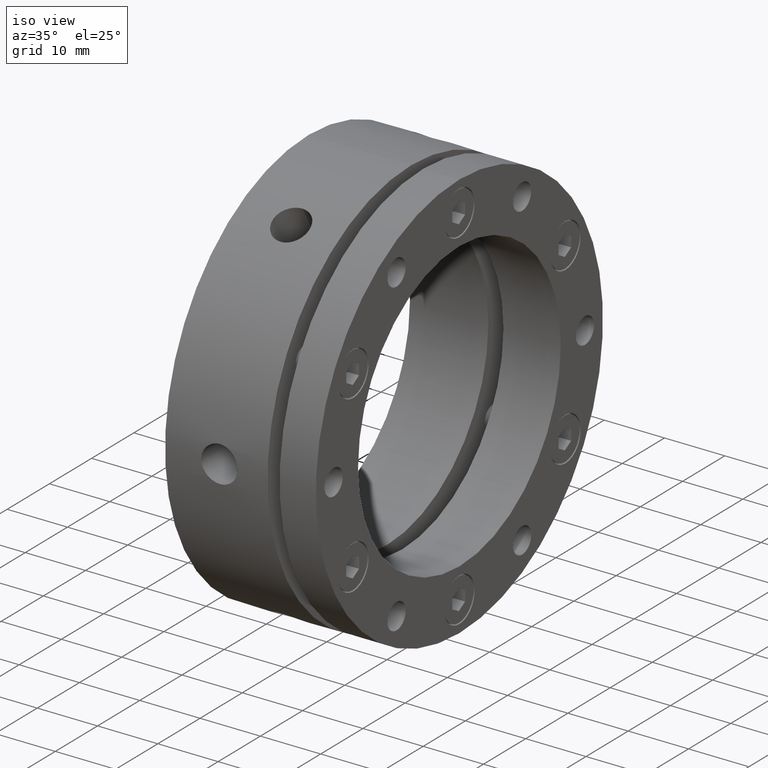
[diagram: clean part render]
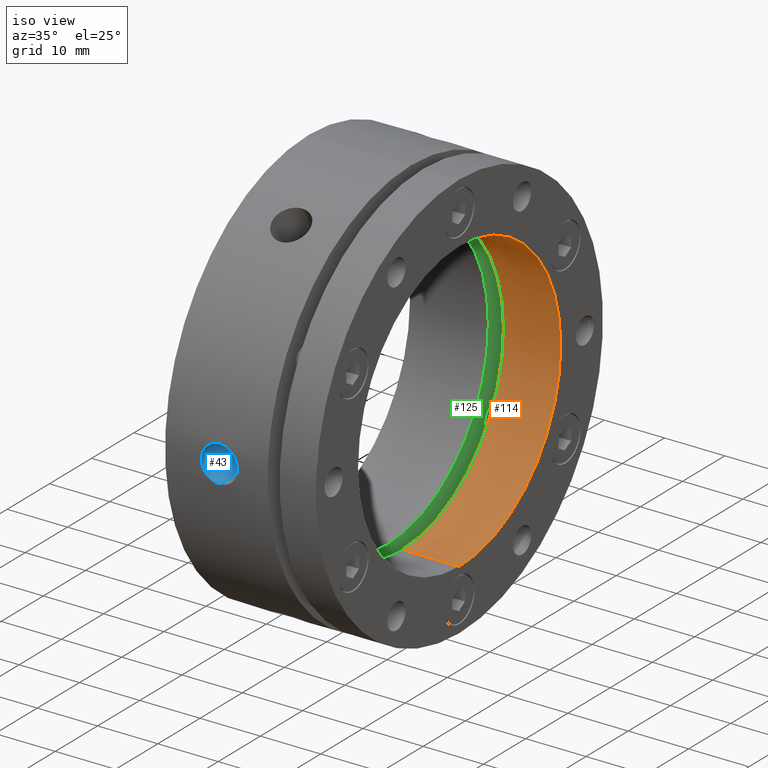
[diagram: same view with three faces highlighted in distinct colors, each labeled with its STEP entity id]
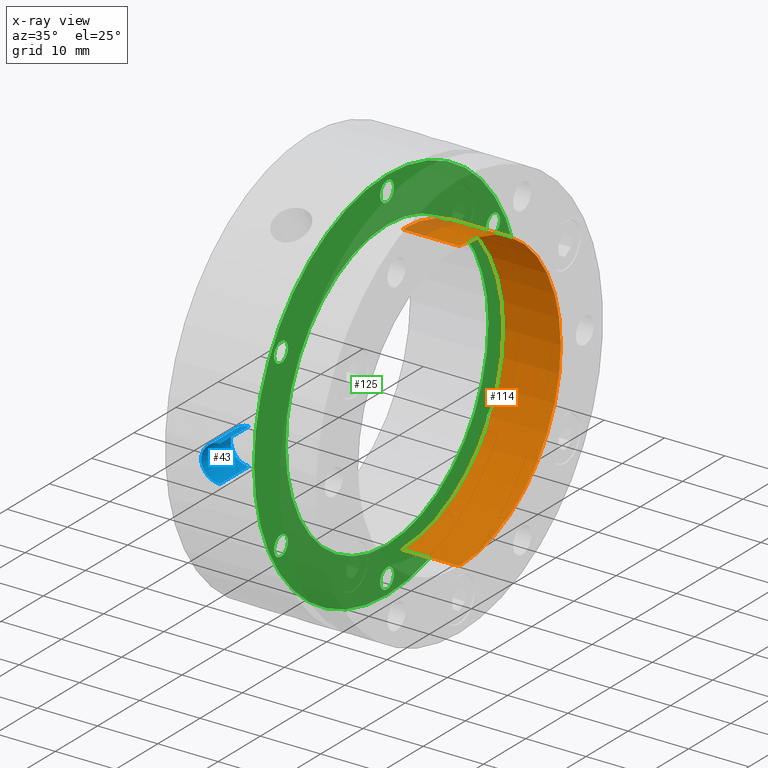
[diagram: x-ray of the same camera — body ghosted, the three highlighted faces saturated]
A machine part, iso view with three faces highlighted in distinct colors.
The next image is the same camera in x-ray (body ghosted, the three faces saturated) — at least one of them is partly hidden behind the body in this view.
Their STEP definitions:

[orange] entity #114 — the highlighted cylindrical surface (partial cylindrical patch) has radius 24 mm, axis along (1, 0, 0).
#114 = ADVANCED_FACE ( 'NONE', ( #1914 ), #1918, .F. ) ;
#412 = DIRECTION ( 'NONE',  ( 0.0000000000000000000, 0.0000000000000000000, -1.000000000000000000 ) ) ;
#415 = DIRECTION ( 'NONE',  ( 1.000000000000000000, 0.0000000000000000000, 0.0000000000000000000 ) ) ;
#416 = CARTESIAN_POINT ( 'NONE',  ( 12.49999999999999300, 0.0000000000000000000, 0.0000000000000000000 ) ) ;
#790 = ORIENTED_EDGE ( 'NONE', *, *, #2917, .F. ) ;
#791 = ORIENTED_EDGE ( 'NONE', *, *, #1445, .T. ) ;
#792 = ORIENTED_EDGE ( 'NONE', *, *, #2919, .T. ) ;
#793 = ORIENTED_EDGE ( 'NONE', *, *, #1437, .F. ) ;
#1203 = EDGE_LOOP ( 'NONE', ( #790, #791, #792, #793 ) ) ;
#1437 = EDGE_CURVE ( 'NONE', #1668, #1667, #2379, .T. ) ;
#1445 = EDGE_CURVE ( 'NONE', #1663, #1662, #2387, .T. ) ;
#1662 = VERTEX_POINT ( 'NONE', #3646 ) ;
#1663 = VERTEX_POINT ( 'NONE', #3647 ) ;
#1667 = VERTEX_POINT ( 'NONE', #3651 ) ;
#1668 = VERTEX_POINT ( 'NONE', #3652 ) ;
#1914 = FACE_OUTER_BOUND ( 'NONE', #1203, .T. ) ;
#1918 = CYLINDRICAL_SURFACE ( 'NONE', #2001, 24.00000000000000400 ) ;
#2001 = AXIS2_PLACEMENT_3D ( 'NONE', #416, #415, #412 ) ;
#2091 = AXIS2_PLACEMENT_3D ( 'NONE', #4341, #4342, #4343 ) ;
#2099 = AXIS2_PLACEMENT_3D ( 'NONE', #4366, #4367, #4368 ) ;
#2379 = CIRCLE ( 'NONE', #2091, 24.00000000000000400 ) ;
#2387 = CIRCLE ( 'NONE', #2099, 24.00000000000000400 ) ;
#2673 = LINE ( 'NONE', #3789, #2681 ) ;
#2681 = VECTOR ( 'NONE', #3783, 1000.000000000000000 ) ;
#2682 = LINE ( 'NONE', #3788, #2684 ) ;
#2684 = VECTOR ( 'NONE', #3787, 1000.000000000000000 ) ;
#2917 = EDGE_CURVE ( 'NONE', #1663, #1668, #2673, .T. ) ;
#2919 = EDGE_CURVE ( 'NONE', #1662, #1667, #2682, .T. ) ;
#3646 = CARTESIAN_POINT ( 'NONE',  ( 15.50000000000000500, 0.0000000000000000000, -24.00000000000000400 ) ) ;
#3647 = CARTESIAN_POINT ( 'NONE',  ( 15.50000000000000500, 2.939152317953648300E-015, 24.00000000000000400 ) ) ;
#3651 = CARTESIAN_POINT ( 'NONE',  ( 24.99999999999999300, 0.0000000000000000000, -24.00000000000000400 ) ) ;
#3652 = CARTESIAN_POINT ( 'NONE',  ( 24.99999999999999300, 2.939152317953648300E-015, 24.00000000000000400 ) ) ;
#3783 = DIRECTION ( 'NONE',  ( 1.000000000000000000, 0.0000000000000000000, 0.0000000000000000000 ) ) ;
#3787 = DIRECTION ( 'NONE',  ( 1.000000000000000000, 0.0000000000000000000, 0.0000000000000000000 ) ) ;
#3788 = CARTESIAN_POINT ( 'NONE',  ( 12.49999999999999300, 0.0000000000000000000, -24.00000000000000400 ) ) ;
#3789 = CARTESIAN_POINT ( 'NONE',  ( 12.49999999999999300, 2.939152317953648300E-015, 24.00000000000000400 ) ) ;
#4341 = CARTESIAN_POINT ( 'NONE',  ( 24.99999999999999300, 0.0000000000000000000, 0.0000000000000000000 ) ) ;
#4342 = DIRECTION ( 'NONE',  ( -1.000000000000000000, -0.0000000000000000000, -0.0000000000000000000 ) ) ;
#4343 = DIRECTION ( 'NONE',  ( 0.0000000000000000000, 0.0000000000000000000, -1.000000000000000000 ) ) ;
#4366 = CARTESIAN_POINT ( 'NONE',  ( 15.50000000000000500, 0.0000000000000000000, 0.0000000000000000000 ) ) ;
#4367 = DIRECTION ( 'NONE',  ( -1.000000000000000000, -0.0000000000000000000, -0.0000000000000000000 ) ) ;
#4368 = DIRECTION ( 'NONE',  ( 0.0000000000000000000, 0.0000000000000000000, -1.000000000000000000 ) ) ;

[blue] entity #43 — the highlighted cylindrical surface (edge-blend (fillet) strip) has radius 3 mm, axis along (0, -1, 0).
#43 = ADVANCED_FACE ( 'NONE', ( #1755 ), #1764, .F. ) ;
#192 = DIRECTION ( 'NONE',  ( 0.0000000000000000000, 0.0000000000000000000, -1.000000000000000000 ) ) ;
#194 = DIRECTION ( 'NONE',  ( 0.0000000000000000000, -1.000000000000000000, 2.775557999999999800E-016 ) ) ;
#196 = CARTESIAN_POINT ( 'NONE',  ( 8.999999999999989300, -30.50000000000000400, -2.220446000000000000E-015 ) ) ;
#604 = CARTESIAN_POINT ( 'NONE',  ( 8.999999999999989300, -26.99999999999999600, 2.999999995915072500 ) ) ;
#610 = CARTESIAN_POINT ( 'NONE',  ( 8.999999999999989300, -26.99999999999999600, -2.999999995915079200 ) ) ;
#612 = CARTESIAN_POINT ( 'NONE',  ( 8.999999999999989300, -33.86738844375220500, -3.000000000000001300 ) ) ;
#613 = CARTESIAN_POINT ( 'NONE',  ( 8.999999999999989300, -33.86738844375220500, 2.999999999999998700 ) ) ;
#1105 = EDGE_LOOP ( 'NONE', ( #3014, #3013, #2988, #2996 ) ) ;
#1296 = VERTEX_POINT ( 'NONE', #604 ) ;
#1302 = VERTEX_POINT ( 'NONE', #610 ) ;
#1304 = VERTEX_POINT ( 'NONE', #612 ) ;
#1305 = VERTEX_POINT ( 'NONE', #613 ) ;
#1465 = EDGE_CURVE ( 'NONE', #1296, #1302, #2404, .T. ) ;
#1466 = EDGE_CURVE ( 'NONE', #1296, #1305, #2401, .T. ) ;
#1467 = EDGE_CURVE ( 'NONE', #1304, #1305, #2870, .T. ) ;
#1468 = EDGE_CURVE ( 'NONE', #1302, #1304, #2407, .T. ) ;
#1755 = FACE_OUTER_BOUND ( 'NONE', #1105, .T. ) ;
#1764 = CYLINDRICAL_SURFACE ( 'NONE', #1932, 3.000000000000000000 ) ;
#1932 = AXIS2_PLACEMENT_3D ( 'NONE', #196, #194, #192 ) ;
#2108 = AXIS2_PLACEMENT_3D ( 'NONE', #4641, #4642, #4643 ) ;
#2401 = LINE ( 'NONE', #4640, #2408 ) ;
#2404 = CIRCLE ( 'NONE', #2108, 3.000000000000000000 ) ;
#2407 = LINE ( 'NONE', #4645, #2410 ) ;
#2408 = VECTOR ( 'NONE', #4638, 1000.000000000000000 ) ;
#2410 = VECTOR ( 'NONE', #4678, 1000.000000000000000 ) ;
#2870 = B_SPLINE_CURVE_WITH_KNOTS ( 'NONE', 3,
 ( #4644, #4639, #4646, #4647, #4648, #4649, #4650, #4651, #4652, #4653, #4654, #4655, #4656, #4657, #4658, #4659, #4660, #4661, #4662, #4663, #4664, #4665, #4666, #4667, #4668, #4669, #4670, #4671, #4672, #4673, #4674, #4675, #4676, #4677 ),
 .UNSPECIFIED., .F., .F.,
 ( 4, 2, 2, 2, 2, 2, 2, 2, 2, 2, 2, 2, 2, 2, 2, 2, 4 ),
 ( 0.01407493801573589700, 0.01466130630313677700, 0.01524767459053765400, 0.01583404287793853400, 0.01642041116533941200, 0.01700677945274028900, 0.01759314774014116700, 0.01817951602754204500, 0.01876588431494292200, 0.01935225260234380000, 0.01993862088974467800, 0.02052498917714555600, 0.02111135746454643300, 0.02169772575194731100, 0.02228409403934818900, 0.02287046232674906600, 0.02345683061414994400 ),
 .UNSPECIFIED. ) ;
#2988 = ORIENTED_EDGE ( 'NONE', *, *, #1467, .F. ) ;
#2996 = ORIENTED_EDGE ( 'NONE', *, *, #1468, .F. ) ;
#3013 = ORIENTED_EDGE ( 'NONE', *, *, #1466, .T. ) ;
#3014 = ORIENTED_EDGE ( 'NONE', *, *, #1465, .F. ) ;
#4638 = DIRECTION ( 'NONE',  ( 0.0000000000000000000, -1.000000000000000000, 2.775557999999999800E-016 ) ) ;
#4639 = CARTESIAN_POINT ( 'NONE',  ( 8.804262436201767600, -33.86738844375219800, -3.000000000000000900 ) ) ;
#4640 = CARTESIAN_POINT ( 'NONE',  ( 8.999999999999989300, -30.50000000000000400, 2.999999999999997800 ) ) ;
#4641 = CARTESIAN_POINT ( 'NONE',  ( 8.999999999999989300, -26.99999999999999600, -3.191891300000001600E-015 ) ) ;
#4642 = DIRECTION ( 'NONE',  ( 0.0000000000000000000, -1.000000000000000000, 2.775557999999999800E-016 ) ) ;
#4643 = DIRECTION ( 'NONE',  ( 0.0000000000000000000, 0.0000000000000000000, -1.000000000000000000 ) ) ;
#4644 = CARTESIAN_POINT ( 'NONE',  ( 8.999999999999989300, -33.86738844375220500, -3.000000000000001300 ) ) ;
#4645 = CARTESIAN_POINT ( 'NONE',  ( 8.999999999999989300, -30.50000000000000400, -3.000000000000002200 ) ) ;
#4646 = CARTESIAN_POINT ( 'NONE',  ( 8.605440970800671600, -33.86914057581145000, -2.980402743067530400 ) ) ;
#4647 = CARTESIAN_POINT ( 'NONE',  ( 8.220709408438613900, -33.87580700651500400, -2.903650032684910600 ) ) ;
#4648 = CARTESIAN_POINT ( 'NONE',  ( 8.033704343562002100, -33.88068447841340000, -2.846913197848502700 ) ) ;
#4649 = CARTESIAN_POINT ( 'NONE',  ( 7.670472078097014400, -33.89298891991190000, -2.696478732831999900 ) ) ;
#4650 = CARTESIAN_POINT ( 'NONE',  ( 7.494983569670664800, -33.90042410450594400, -2.602518738379601300 ) ) ;
#4651 = CARTESIAN_POINT ( 'NONE',  ( 7.170121807952790900, -33.91639919283200300, -2.385314243752435700 ) ) ;
#4652 = CARTESIAN_POINT ( 'NONE',  ( 7.018673629526710500, -33.92500733232649400, -2.261319033757637900 ) ) ;
#4653 = CARTESIAN_POINT ( 'NONE',  ( 6.738614216169348300, -33.94251513920830400, -1.981250184973135700 ) ) ;
#4654 = CARTESIAN_POINT ( 'NONE',  ( 6.614569631254607200, -33.95112005734483800, -1.829723187073892800 ) ) ;
#4655 = CARTESIAN_POINT ( 'NONE',  ( 6.397420108754104700, -33.96706783333567600, -1.504906274533778700 ) ) ;
#4656 = CARTESIAN_POINT ( 'NONE',  ( 6.303511815639665400, -33.97448197429600500, -1.329518665573314700 ) ) ;
#4657 = CARTESIAN_POINT ( 'NONE',  ( 6.153035644562747200, -33.98675599309972700, -0.9661585632661342500 ) ) ;
#4658 = CARTESIAN_POINT ( 'NONE',  ( 6.096322277939021800, -33.99161491041346700, -0.7791627876697538900 ) ) ;
#4659 = CARTESIAN_POINT ( 'NONE',  ( 6.019612069823392800, -33.99825366277792700, -0.3946222864209818500 ) ) ;
#4660 = CARTESIAN_POINT ( 'NONE',  ( 5.999860042777521900, -34.00001234916360500, -0.1961243387836381400 ) ) ;
#4661 = CARTESIAN_POINT ( 'NONE',  ( 6.000141468507668400, -33.99998751748773200, 0.2003829089989452300 ) ) ;
#4662 = CARTESIAN_POINT ( 'NONE',  ( 6.019738718383950800, -33.99824267048909100, 0.3953054974115500800 ) ) ;
#4663 = CARTESIAN_POINT ( 'NONE',  ( 6.096252427142199600, -33.99162098726159800, 0.7787642622167293400 ) ) ;
#4664 = CARTESIAN_POINT ( 'NONE',  ( 6.154107150678169300, -33.98666586533090600, 0.9692990025885746000 ) ) ;
#4665 = CARTESIAN_POINT ( 'NONE',  ( 6.304935179524339800, -33.97436864635445600, 1.332393440270110800 ) ) ;
#4666 = CARTESIAN_POINT ( 'NONE',  ( 6.397187802308518900, -33.96708443834721400, 1.504589005316408600 ) ) ;
#4667 = CARTESIAN_POINT ( 'NONE',  ( 6.615087875966737300, -33.95108245321080200, 1.830468129198027600 ) ) ;
#4668 = CARTESIAN_POINT ( 'NONE',  ( 6.741820238327549400, -33.94230839163809300, 1.984659227821971900 ) ) ;
#4669 = CARTESIAN_POINT ( 'NONE',  ( 7.018598987214522500, -33.92501839484403100, 2.261039166652945000 ) ) ;
#4670 = CARTESIAN_POINT ( 'NONE',  ( 7.169628256155203200, -33.91641823604723500, 2.385087298971974200 ) ) ;
#4671 = CARTESIAN_POINT ( 'NONE',  ( 7.497650951073001800, -33.90029819790121500, 2.604198433217217900 ) ) ;
#4672 = CARTESIAN_POINT ( 'NONE',  ( 7.672132963782239300, -33.89292978941952600, 2.697207721008215900 ) ) ;
#4673 = CARTESIAN_POINT ( 'NONE',  ( 8.033123291981507200, -33.88070703827115400, 2.846631305180105100 ) ) ;
#4674 = CARTESIAN_POINT ( 'NONE',  ( 8.222303677041292500, -33.87576316389687000, 2.904162239251933300 ) ) ;
#4675 = CARTESIAN_POINT ( 'NONE',  ( 8.609564735460342200, -33.86908558053323000, 2.981028377396655900 ) ) ;
#4676 = CARTESIAN_POINT ( 'NONE',  ( 8.804262130912047000, -33.86738844375219800, 2.999999999999998700 ) ) ;
#4677 = CARTESIAN_POINT ( 'NONE',  ( 8.999999999999989300, -33.86738844375220500, 2.999999999999998700 ) ) ;
#4678 = DIRECTION ( 'NONE',  ( 0.0000000000000000000, -1.000000000000000000, 2.775557999999999800E-016 ) ) ;

[green] entity #125 — the highlighted planar face has unit normal (-1, 0, 0).
#125 = ADVANCED_FACE ( 'NONE', ( #2180, #2184, #2181, #2183, #2182, #2185, #2186, #2187 ), #451, .F. ) ;
#447 = DIRECTION ( 'NONE',  ( -1.000000000000000000, 0.0000000000000000000, 0.0000000000000000000 ) ) ;
#449 = CARTESIAN_POINT ( 'NONE',  ( 13.00000000000001600, 15.75000000000000400, 0.0000000000000000000 ) ) ;
#451 = PLANE ( 'NONE',  #2013 ) ;
#453 = DIRECTION ( 'NONE',  ( 0.0000000000000000000, 0.0000000000000000000, 1.000000000000000000 ) ) ;
#622 = CARTESIAN_POINT ( 'NONE',  ( 13.00000000000001600, 1.985152461417858200E-016, 27.37900000000001600 ) ) ;
#626 = CARTESIAN_POINT ( 'NONE',  ( 13.00000000000001600, 0.0000000000000000000, -24.00000000000000400 ) ) ;
#627 = CARTESIAN_POINT ( 'NONE',  ( 13.00000000000001600, 2.939152317953648300E-015, 24.00000000000000400 ) ) ;
#628 = CARTESIAN_POINT ( 'NONE',  ( 13.00000000000001600, 0.0000000000000000000, 30.62100000000001600 ) ) ;
#629 = CARTESIAN_POINT ( 'NONE',  ( 13.00000000000001600, -25.11473670974873000, 12.87900000000000800 ) ) ;
#632 = CARTESIAN_POINT ( 'NONE',  ( 13.00000000000001600, -25.11473670974873000, 16.12100000000000900 ) ) ;
#633 = CARTESIAN_POINT ( 'NONE',  ( 13.00000000000001600, -25.11473670974873300, -16.12100000000000200 ) ) ;
#636 = CARTESIAN_POINT ( 'NONE',  ( 13.00000000000001600, -25.11473670974873300, -12.87900000000000100 ) ) ;
#637 = CARTESIAN_POINT ( 'NONE',  ( 13.00000000000001600, -4.242376753858213700E-015, -30.62100000000002000 ) ) ;
#640 = CARTESIAN_POINT ( 'NONE',  ( 13.00000000000001600, -4.440891999999999900E-015, -27.37900000000001900 ) ) ;
#641 = CARTESIAN_POINT ( 'NONE',  ( 13.00000000000001600, 25.11473670974872600, -16.12100000000001600 ) ) ;
#644 = CARTESIAN_POINT ( 'NONE',  ( 13.00000000000001600, 25.11473670974872600, -12.87900000000001900 ) ) ;
#645 = CARTESIAN_POINT ( 'NONE',  ( 13.00000000000001600, 25.11473670974874400, 12.87899999999998400 ) ) ;
#648 = CARTESIAN_POINT ( 'NONE',  ( 13.00000000000001600, 25.11473670974874400, 16.12099999999998400 ) ) ;
#861 = ORIENTED_EDGE ( 'NONE', *, *, #1484, .T. ) ;
#863 = ORIENTED_EDGE ( 'NONE', *, *, #1566, .T. ) ;
#865 = ORIENTED_EDGE ( 'NONE', *, *, #1567, .T. ) ;
#866 = ORIENTED_EDGE ( 'NONE', *, *, #1486, .T. ) ;
#867 = ORIENTED_EDGE ( 'NONE', *, *, #1568, .T. ) ;
#868 = ORIENTED_EDGE ( 'NONE', *, *, #1490, .T. ) ;
#870 = ORIENTED_EDGE ( 'NONE', *, *, #1569, .T. ) ;
#872 = ORIENTED_EDGE ( 'NONE', *, *, #1494, .T. ) ;
#873 = ORIENTED_EDGE ( 'NONE', *, *, #1570, .T. ) ;
#874 = ORIENTED_EDGE ( 'NONE', *, *, #1498, .T. ) ;
#875 = ORIENTED_EDGE ( 'NONE', *, *, #1571, .T. ) ;
#877 = ORIENTED_EDGE ( 'NONE', *, *, #1502, .T. ) ;
#879 = ORIENTED_EDGE ( 'NONE', *, *, #1572, .T. ) ;
#881 = ORIENTED_EDGE ( 'NONE', *, *, #1506, .T. ) ;
#883 = ORIENTED_EDGE ( 'NONE', *, *, #1558, .F. ) ;
#885 = ORIENTED_EDGE ( 'NONE', *, *, #1547, .F. ) ;
#1223 = EDGE_LOOP ( 'NONE', ( #867, #868 ) ) ;
#1227 = EDGE_LOOP ( 'NONE', ( #875, #877 ) ) ;
#1228 = EDGE_LOOP ( 'NONE', ( #865, #866 ) ) ;
#1229 = EDGE_LOOP ( 'NONE', ( #870, #872 ) ) ;
#1230 = EDGE_LOOP ( 'NONE', ( #861, #863 ) ) ;
#1231 = EDGE_LOOP ( 'NONE', ( #879, #881 ) ) ;
#1232 = EDGE_LOOP ( 'NONE', ( #873, #874 ) ) ;
#1233 = EDGE_LOOP ( 'NONE', ( #883, #885 ) ) ;
#1314 = VERTEX_POINT ( 'NONE', #622 ) ;
#1318 = VERTEX_POINT ( 'NONE', #626 ) ;
#1319 = VERTEX_POINT ( 'NONE', #627 ) ;
#1320 = VERTEX_POINT ( 'NONE', #628 ) ;
#1321 = VERTEX_POINT ( 'NONE', #629 ) ;
#1324 = VERTEX_POINT ( 'NONE', #632 ) ;
#1325 = VERTEX_POINT ( 'NONE', #633 ) ;
#1328 = VERTEX_POINT ( 'NONE', #636 ) ;
#1329 = VERTEX_POINT ( 'NONE', #637 ) ;
#1332 = VERTEX_POINT ( 'NONE', #640 ) ;
#1333 = VERTEX_POINT ( 'NONE', #641 ) ;
#1336 = VERTEX_POINT ( 'NONE', #644 ) ;
#1337 = VERTEX_POINT ( 'NONE', #645 ) ;
#1340 = VERTEX_POINT ( 'NONE', #648 ) ;
#1484 = EDGE_CURVE ( 'NONE', #1318, #1319, #2431, .T. ) ;
#1486 = EDGE_CURVE ( 'NONE', #1314, #1320, #2434, .T. ) ;
#1490 = EDGE_CURVE ( 'NONE', #1321, #1324, #2440, .T. ) ;
#1494 = EDGE_CURVE ( 'NONE', #1325, #1328, #2446, .T. ) ;
#1498 = EDGE_CURVE ( 'NONE', #1329, #1332, #2452, .T. ) ;
#1502 = EDGE_CURVE ( 'NONE', #1333, #1336, #2458, .T. ) ;
#1506 = EDGE_CURVE ( 'NONE', #1337, #1340, #2464, .T. ) ;
#1547 = EDGE_CURVE ( 'NONE', #1636, #1637, #2531, .T. ) ;
#1558 = EDGE_CURVE ( 'NONE', #1637, #1636, #2548, .T. ) ;
#1566 = EDGE_CURVE ( 'NONE', #1319, #1318, #2556, .T. ) ;
#1567 = EDGE_CURVE ( 'NONE', #1320, #1314, #2557, .T. ) ;
#1568 = EDGE_CURVE ( 'NONE', #1324, #1321, #2558, .T. ) ;
#1569 = EDGE_CURVE ( 'NONE', #1328, #1325, #2559, .T. ) ;
#1570 = EDGE_CURVE ( 'NONE', #1332, #1329, #2560, .T. ) ;
#1571 = EDGE_CURVE ( 'NONE', #1336, #1333, #2561, .T. ) ;
#1572 = EDGE_CURVE ( 'NONE', #1340, #1337, #2562, .T. ) ;
#1636 = VERTEX_POINT ( 'NONE', #3587 ) ;
#1637 = VERTEX_POINT ( 'NONE', #3623 ) ;
#2013 = AXIS2_PLACEMENT_3D ( 'NONE', #449, #447, #453 ) ;
#2114 = AXIS2_PLACEMENT_3D ( 'NONE', #3152, #3153, #3154 ) ;
#2115 = AXIS2_PLACEMENT_3D ( 'NONE', #3157, #3158, #3159 ) ;
#2117 = AXIS2_PLACEMENT_3D ( 'NONE', #3167, #3168, #3169 ) ;
#2119 = AXIS2_PLACEMENT_3D ( 'NONE', #3177, #3178, #3179 ) ;
#2121 = AXIS2_PLACEMENT_3D ( 'NONE', #3187, #3188, #3189 ) ;
#2123 = AXIS2_PLACEMENT_3D ( 'NONE', #3197, #3198, #3199 ) ;
#2125 = AXIS2_PLACEMENT_3D ( 'NONE', #3207, #3208, #3209 ) ;
#2140 = AXIS2_PLACEMENT_3D ( 'NONE', #3306, #3307, #3308 ) ;
#2147 = AXIS2_PLACEMENT_3D ( 'NONE', #3331, #3332, #3333 ) ;
#2155 = AXIS2_PLACEMENT_3D ( 'NONE', #3355, #3356, #3357 ) ;
#2156 = AXIS2_PLACEMENT_3D ( 'NONE', #3358, #3359, #3360 ) ;
#2157 = AXIS2_PLACEMENT_3D ( 'NONE', #3361, #3362, #3363 ) ;
#2180 = FACE_BOUND ( 'NONE', #1230, .T. ) ;
#2181 = FACE_BOUND ( 'NONE', #1223, .T. ) ;
#2182 = FACE_BOUND ( 'NONE', #1232, .T. ) ;
#2183 = FACE_BOUND ( 'NONE', #1229, .T. ) ;
#2184 = FACE_BOUND ( 'NONE', #1228, .T. ) ;
#2185 = FACE_BOUND ( 'NONE', #1227, .T. ) ;
#2186 = FACE_BOUND ( 'NONE', #1231, .T. ) ;
#2187 = FACE_OUTER_BOUND ( 'NONE', #1233, .T. ) ;
#2431 = CIRCLE ( 'NONE', #2114, 24.00000000000000400 ) ;
#2434 = CIRCLE ( 'NONE', #2115, 1.621000000000000900 ) ;
#2440 = CIRCLE ( 'NONE', #2117, 1.621000000000000900 ) ;
#2446 = CIRCLE ( 'NONE', #2119, 1.621000000000000900 ) ;
#2452 = CIRCLE ( 'NONE', #2121, 1.621000000000000900 ) ;
#2458 = CIRCLE ( 'NONE', #2123, 1.620999999999999100 ) ;
#2464 = CIRCLE ( 'NONE', #2125, 1.621000000000000900 ) ;
#2531 = CIRCLE ( 'NONE', #2140, 31.50000000000000700 ) ;
#2548 = CIRCLE ( 'NONE', #2147, 31.50000000000000700 ) ;
#2556 = CIRCLE ( 'NONE', #2155, 24.00000000000000400 ) ;
#2557 = CIRCLE ( 'NONE', #2156, 1.621000000000000900 ) ;
#2558 = CIRCLE ( 'NONE', #2157, 1.621000000000000900 ) ;
#2559 = CIRCLE ( 'NONE', #3997, 1.621000000000000900 ) ;
#2560 = CIRCLE ( 'NONE', #3998, 1.621000000000000900 ) ;
#2561 = CIRCLE ( 'NONE', #3999, 1.620999999999999100 ) ;
#2562 = CIRCLE ( 'NONE', #4000, 1.621000000000000900 ) ;
#3152 = CARTESIAN_POINT ( 'NONE',  ( 13.00000000000001600, 0.0000000000000000000, 0.0000000000000000000 ) ) ;
#3153 = DIRECTION ( 'NONE',  ( -1.000000000000000000, -0.0000000000000000000, -0.0000000000000000000 ) ) ;
#3154 = DIRECTION ( 'NONE',  ( 0.0000000000000000000, 0.0000000000000000000, -1.000000000000000000 ) ) ;
#3157 = CARTESIAN_POINT ( 'NONE',  ( 13.00000000000001600, 0.0000000000000000000, 29.00000000000001400 ) ) ;
#3158 = DIRECTION ( 'NONE',  ( -1.000000000000000000, 0.0000000000000000000, 0.0000000000000000000 ) ) ;
#3159 = DIRECTION ( 'NONE',  ( 0.0000000000000000000, 0.0000000000000000000, 1.000000000000000000 ) ) ;
#3167 = CARTESIAN_POINT ( 'NONE',  ( 13.00000000000001600, -25.11473670974873000, 14.50000000000000900 ) ) ;
#3168 = DIRECTION ( 'NONE',  ( -1.000000000000000000, 0.0000000000000000000, 0.0000000000000000000 ) ) ;
#3169 = DIRECTION ( 'NONE',  ( 0.0000000000000000000, 0.0000000000000000000, 1.000000000000000000 ) ) ;
#3177 = CARTESIAN_POINT ( 'NONE',  ( 13.00000000000001600, -25.11473670974873300, -14.50000000000000200 ) ) ;
#3178 = DIRECTION ( 'NONE',  ( -1.000000000000000000, 0.0000000000000000000, 0.0000000000000000000 ) ) ;
#3179 = DIRECTION ( 'NONE',  ( 0.0000000000000000000, 0.0000000000000000000, 1.000000000000000000 ) ) ;
#3187 = CARTESIAN_POINT ( 'NONE',  ( 13.00000000000001600, -4.440891999999999900E-015, -29.00000000000001800 ) ) ;
#3188 = DIRECTION ( 'NONE',  ( -1.000000000000000000, 0.0000000000000000000, 0.0000000000000000000 ) ) ;
#3189 = DIRECTION ( 'NONE',  ( 0.0000000000000000000, 0.0000000000000000000, 1.000000000000000000 ) ) ;
#3197 = CARTESIAN_POINT ( 'NONE',  ( 13.00000000000001600, 25.11473670974872600, -14.50000000000001800 ) ) ;
#3198 = DIRECTION ( 'NONE',  ( -1.000000000000000000, 0.0000000000000000000, 0.0000000000000000000 ) ) ;
#3199 = DIRECTION ( 'NONE',  ( 0.0000000000000000000, 0.0000000000000000000, 1.000000000000000000 ) ) ;
#3207 = CARTESIAN_POINT ( 'NONE',  ( 13.00000000000001600, 25.11473670974874400, 14.49999999999998600 ) ) ;
#3208 = DIRECTION ( 'NONE',  ( -1.000000000000000000, 0.0000000000000000000, 0.0000000000000000000 ) ) ;
#3209 = DIRECTION ( 'NONE',  ( 0.0000000000000000000, 0.0000000000000000000, 1.000000000000000000 ) ) ;
#3306 = CARTESIAN_POINT ( 'NONE',  ( 13.00000000000001100, 0.0000000000000000000, 0.0000000000000000000 ) ) ;
#3307 = DIRECTION ( 'NONE',  ( -1.000000000000000000, 0.0000000000000000000, 0.0000000000000000000 ) ) ;
#3308 = DIRECTION ( 'NONE',  ( 0.0000000000000000000, 0.0000000000000000000, 1.000000000000000000 ) ) ;
#3331 = CARTESIAN_POINT ( 'NONE',  ( 13.00000000000001100, 0.0000000000000000000, 0.0000000000000000000 ) ) ;
#3332 = DIRECTION ( 'NONE',  ( -1.000000000000000000, 0.0000000000000000000, 0.0000000000000000000 ) ) ;
#3333 = DIRECTION ( 'NONE',  ( 0.0000000000000000000, 0.0000000000000000000, 1.000000000000000000 ) ) ;
#3355 = CARTESIAN_POINT ( 'NONE',  ( 13.00000000000001600, 0.0000000000000000000, 0.0000000000000000000 ) ) ;
#3356 = DIRECTION ( 'NONE',  ( -1.000000000000000000, -0.0000000000000000000, -0.0000000000000000000 ) ) ;
#3357 = DIRECTION ( 'NONE',  ( 0.0000000000000000000, 0.0000000000000000000, -1.000000000000000000 ) ) ;
#3358 = CARTESIAN_POINT ( 'NONE',  ( 13.00000000000001600, 0.0000000000000000000, 29.00000000000001400 ) ) ;
#3359 = DIRECTION ( 'NONE',  ( -1.000000000000000000, 0.0000000000000000000, 0.0000000000000000000 ) ) ;
#3360 = DIRECTION ( 'NONE',  ( 0.0000000000000000000, 0.0000000000000000000, 1.000000000000000000 ) ) ;
#3361 = CARTESIAN_POINT ( 'NONE',  ( 13.00000000000001600, -25.11473670974873000, 14.50000000000000900 ) ) ;
#3362 = DIRECTION ( 'NONE',  ( -1.000000000000000000, 0.0000000000000000000, 0.0000000000000000000 ) ) ;
#3363 = DIRECTION ( 'NONE',  ( 0.0000000000000000000, 0.0000000000000000000, 1.000000000000000000 ) ) ;
#3364 = CARTESIAN_POINT ( 'NONE',  ( 13.00000000000001600, -25.11473670974873300, -14.50000000000000200 ) ) ;
#3365 = DIRECTION ( 'NONE',  ( -1.000000000000000000, 0.0000000000000000000, 0.0000000000000000000 ) ) ;
#3366 = DIRECTION ( 'NONE',  ( 0.0000000000000000000, 0.0000000000000000000, 1.000000000000000000 ) ) ;
#3367 = CARTESIAN_POINT ( 'NONE',  ( 13.00000000000001600, -4.440891999999999900E-015, -29.00000000000001800 ) ) ;
#3368 = DIRECTION ( 'NONE',  ( -1.000000000000000000, 0.0000000000000000000, 0.0000000000000000000 ) ) ;
#3369 = DIRECTION ( 'NONE',  ( 0.0000000000000000000, 0.0000000000000000000, 1.000000000000000000 ) ) ;
#3370 = CARTESIAN_POINT ( 'NONE',  ( 13.00000000000001600, 25.11473670974872600, -14.50000000000001800 ) ) ;
#3371 = DIRECTION ( 'NONE',  ( -1.000000000000000000, 0.0000000000000000000, 0.0000000000000000000 ) ) ;
#3372 = DIRECTION ( 'NONE',  ( 0.0000000000000000000, 0.0000000000000000000, 1.000000000000000000 ) ) ;
#3373 = CARTESIAN_POINT ( 'NONE',  ( 13.00000000000001600, 25.11473670974874400, 14.49999999999998600 ) ) ;
#3374 = DIRECTION ( 'NONE',  ( -1.000000000000000000, 0.0000000000000000000, 0.0000000000000000000 ) ) ;
#3375 = DIRECTION ( 'NONE',  ( 0.0000000000000000000, 0.0000000000000000000, 1.000000000000000000 ) ) ;
#3587 = CARTESIAN_POINT ( 'NONE',  ( 13.00000000000001100, 3.857637417314163500E-015, -31.50000000000000700 ) ) ;
#3623 = CARTESIAN_POINT ( 'NONE',  ( 13.00000000000001100, 0.0000000000000000000, 31.50000000000000700 ) ) ;
#3997 = AXIS2_PLACEMENT_3D ( 'NONE', #3364, #3365, #3366 ) ;
#3998 = AXIS2_PLACEMENT_3D ( 'NONE', #3367, #3368, #3369 ) ;
#3999 = AXIS2_PLACEMENT_3D ( 'NONE', #3370, #3371, #3372 ) ;
#4000 = AXIS2_PLACEMENT_3D ( 'NONE', #3373, #3374, #3375 ) ;